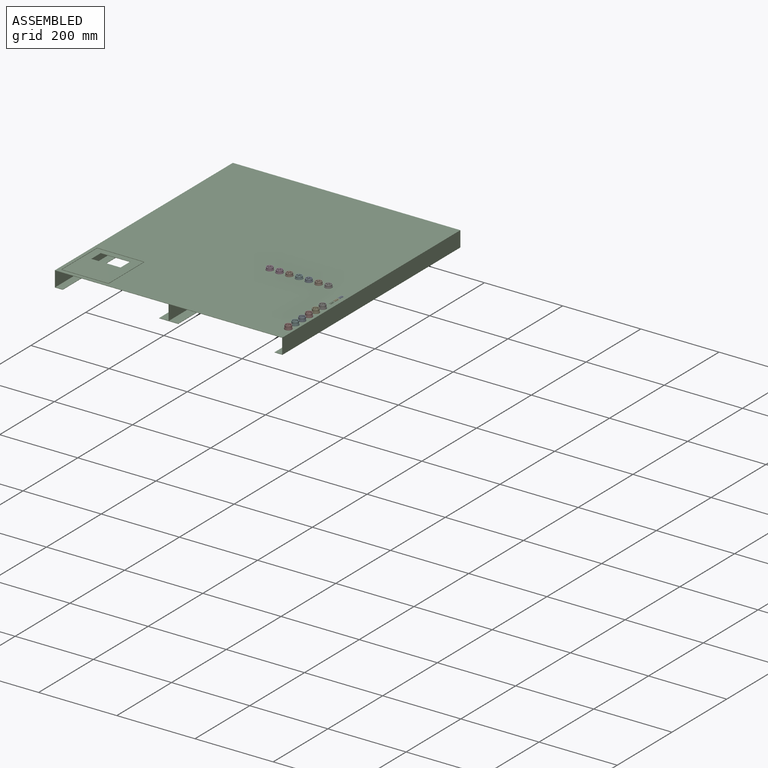
[diagram: assembled view]
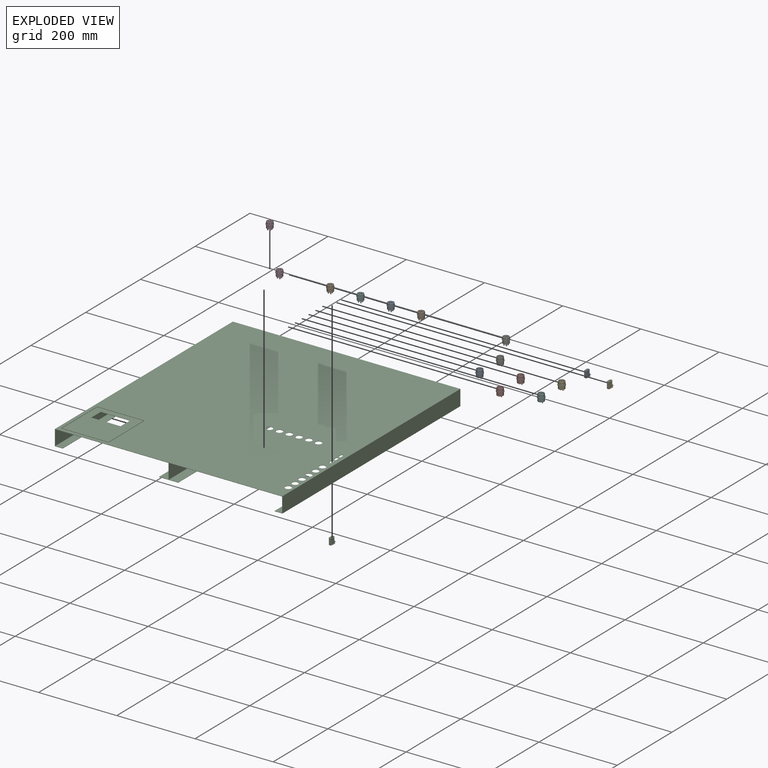
[diagram: exploded view]
GUIDED TOUR — MATED ASSEMBLY (Onshape document a941a942d02a937e6a74bb1d, AutoMate assembly a941a942d02a937e6a74bb1d_d239ec795984a30503c69aed_3e2d429f501e0a5373c27856_default)

This assembly has 17 components, labeled P0..P16 below (a component is one placed occurrence of a part; the same part can appear more than once), held together by 8 mates. A mate is a constraint between two components; its type names the relative motion it leaves free:
  CYLINDRICAL — leaves both rotation about and translation along the listed axis free,
  PARALLEL — keeps the two listed directions parallel,
  PLANAR — leaves sliding in the plane through the listed point (normal = the listed direction) and rotation about that normal free.
Axis/direction vectors are unit vectors and 'through' points are millimeter coordinates, both in the assembly's world frame.

MATES
  1. PLANAR "Planar 5": P10 <-> P2, direction (0.000, 0.000, -1.000) through (497.94, 131.12, -15.90) mm
  2. CYLINDRICAL "Cylindrical 2": P3 <-> P2, axis (0.000, 0.000, 1.000) through (296.49, 192.36, -8.00) mm
  3. CYLINDRICAL "Cylindrical 1": P15 <-> P2, axis (0.000, 0.000, 1.000) through (496.49, -25.42, -4.00) mm
  4. PARALLEL "Parallel 1": P2 <-> P10, direction (0.000, 0.000, 1.000) through (0.00, 0.00, 0.00) mm
  5. PLANAR "Planar 4": P10 <-> P2, direction (0.000, -1.000, 0.000) through (498.03, 124.58, -9.26) mm
  6. PLANAR "Planar 1": P15 <-> P2, direction (0.000, 0.000, -1.000) through (496.49, -25.42, 0.00) mm
  7. PLANAR "Planar 3": P10 <-> P2, direction (-1.000, 0.000, 0.000) through (494.99, 131.12, -8.72) mm
  8. PLANAR "Planar 2": P2 <-> P3, direction (0.000, 0.000, 1.000) through (0.00, 0.00, 0.00) mm

ASSEMBLY ORDER
  1. P11 — the base component [order verified]
  2. P1 [order verified]
  3. P5 [order verified]
  4. P8 [order verified]
  5. P9 [order verified]
  6. P3 [order verified]
  7. P2 [order verified]
  8. P14 [order verified]
  9. P7 [order verified]
  10. P4 [order verified]
  11. P0 [order verified]
  12. P15 [order verified]
  13. P13 [order verified]
  14. P6 [order verified]
  15. P16 [order verified]
  16. P12 [order verified]
  17. P10 [order verified]
(P2 verified with a relaxed clearance tolerance: the source model stores slight part interference there.)
Order-tag legend:
  [order verified] — this step's position reverses a verified removal order: the component was checked to insert without passing through the ones already placed.

Of the 17 components, 1 carries the full construction recipe — the FeatureScript program that regenerates the part's solid from scratch; the rest are supplied as boundary geometry only.
Because this assembly has more than 12 components, the tour below covers the 12 most significant ones individually (every recipe-attached component first, then the largest by part volume), in assembly order; the remaining 5 are summarized together in a grouped section at the end.
Each toured component is shown spotlighted twice — in the assembled view, then in the exploded view, where a leader line traces a displaced component back to its assembled socket (saturated green if recipe-attached, orange if geometry-only; every other component desaturated gray) — followed by its recipe or geometry summary and the mates that hold it.
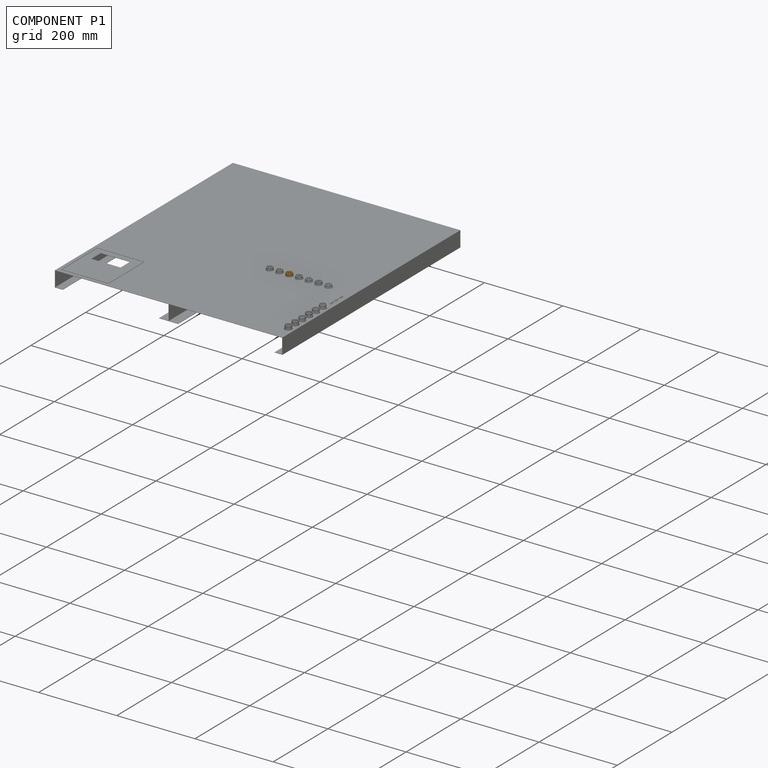
[diagram: component P1 — assembled]
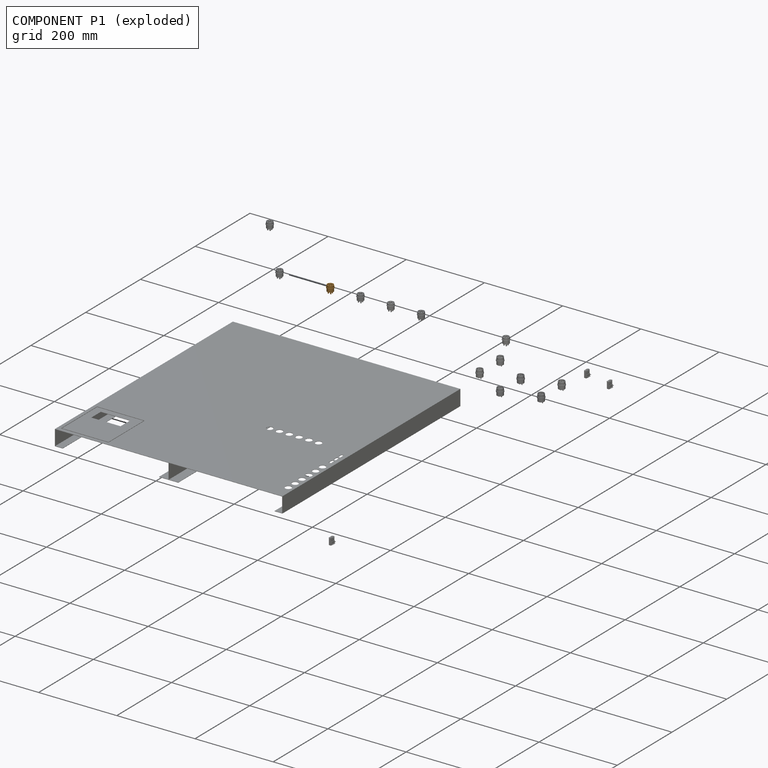
[diagram: component P1 — exploded]
COMPONENT P1 — geometry summary (no construction recipe available for this part):
  bounding box: 20.0 x 18.0 x 18.0 mm
  B-rep topology: 1 solid, 30 faces, 118 edges
  volume: 2028 mm^3 (31% of its bounding box)
  symmetry: mirror-symmetric across its x mid-plane
Held by: no mates (free).
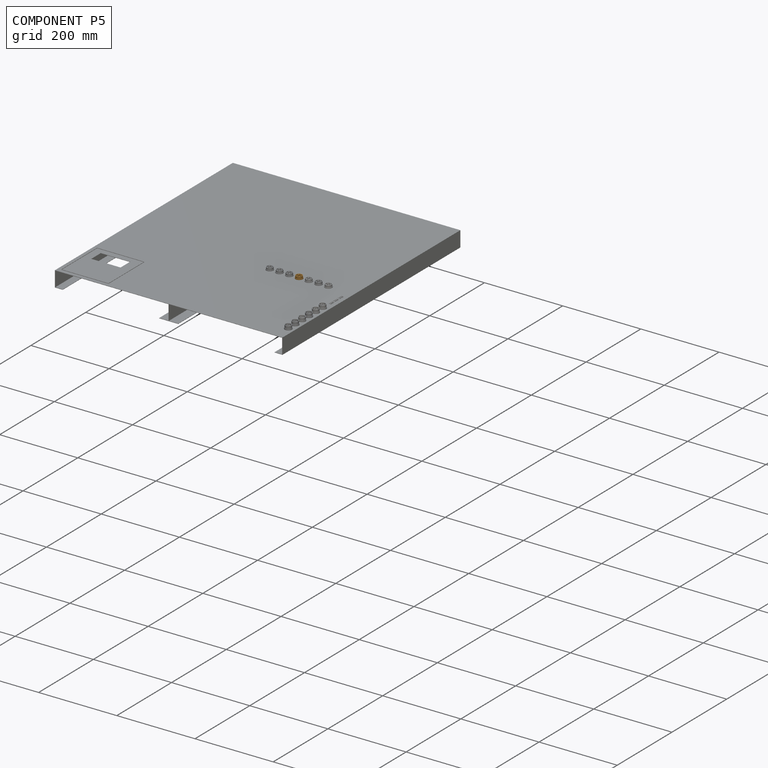
[diagram: component P5 — assembled]
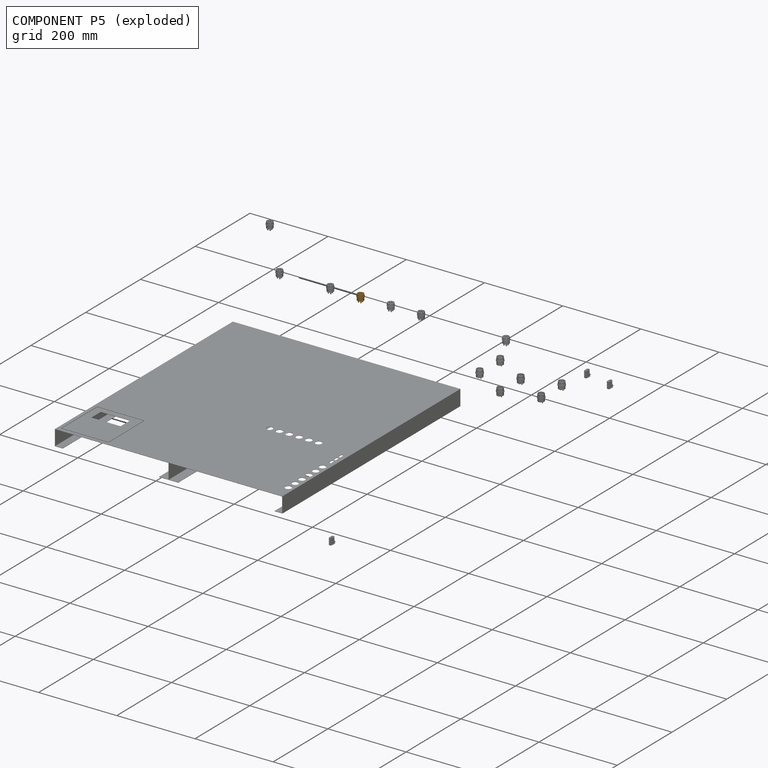
[diagram: component P5 — exploded]
COMPONENT P5 — geometry summary (no construction recipe available for this part):
  bounding box: 20.0 x 18.0 x 18.0 mm
  B-rep topology: 1 solid, 30 faces, 118 edges
  volume: 2028 mm^3 (31% of its bounding box)
  symmetry: mirror-symmetric across its x mid-plane
Held by: no mates (free).
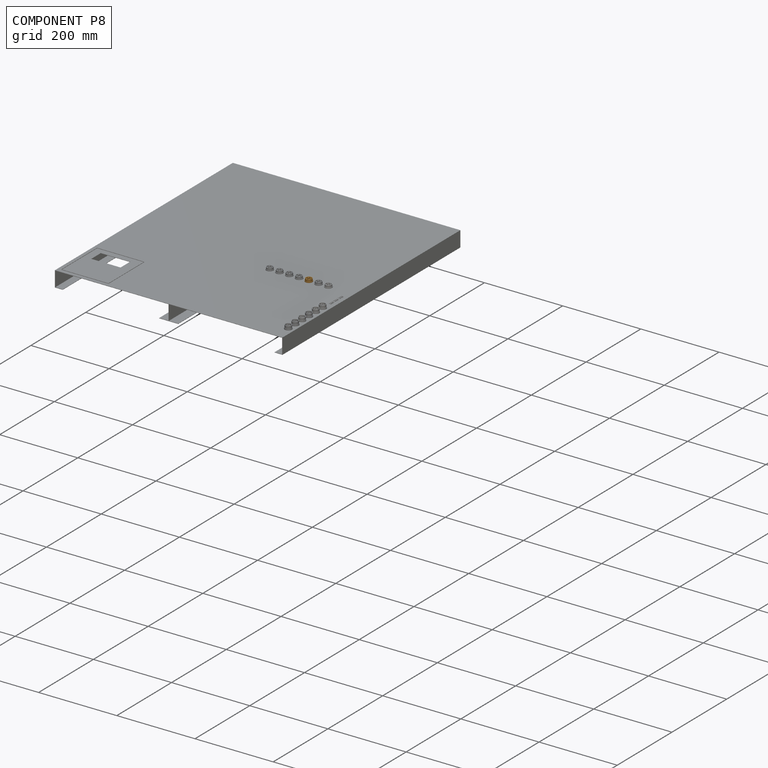
[diagram: component P8 — assembled]
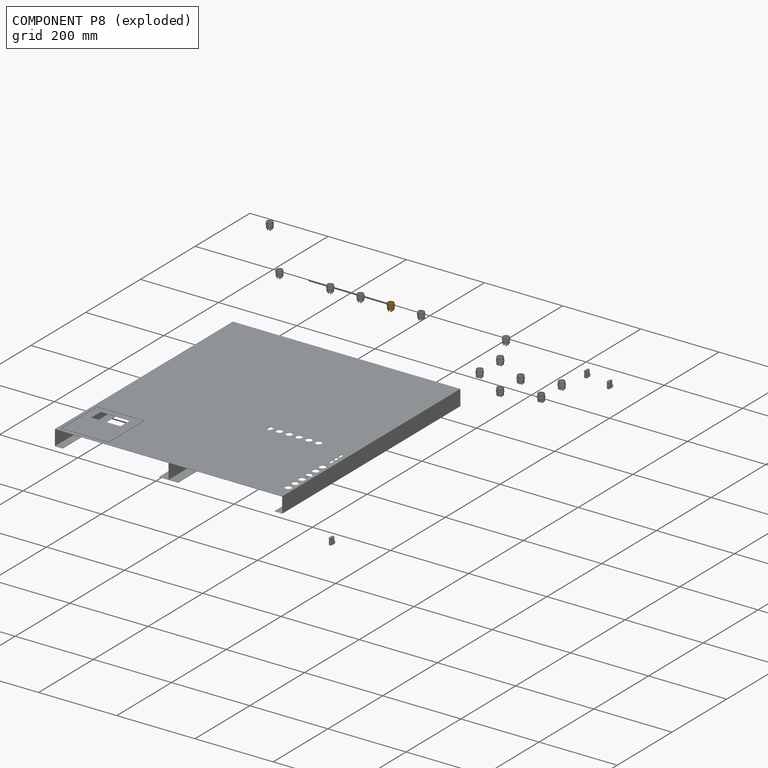
[diagram: component P8 — exploded]
COMPONENT P8 — geometry summary (no construction recipe available for this part):
  bounding box: 20.0 x 18.0 x 18.0 mm
  B-rep topology: 1 solid, 30 faces, 118 edges
  volume: 2028 mm^3 (31% of its bounding box)
  symmetry: mirror-symmetric across its x mid-plane
Held by: no mates (free).
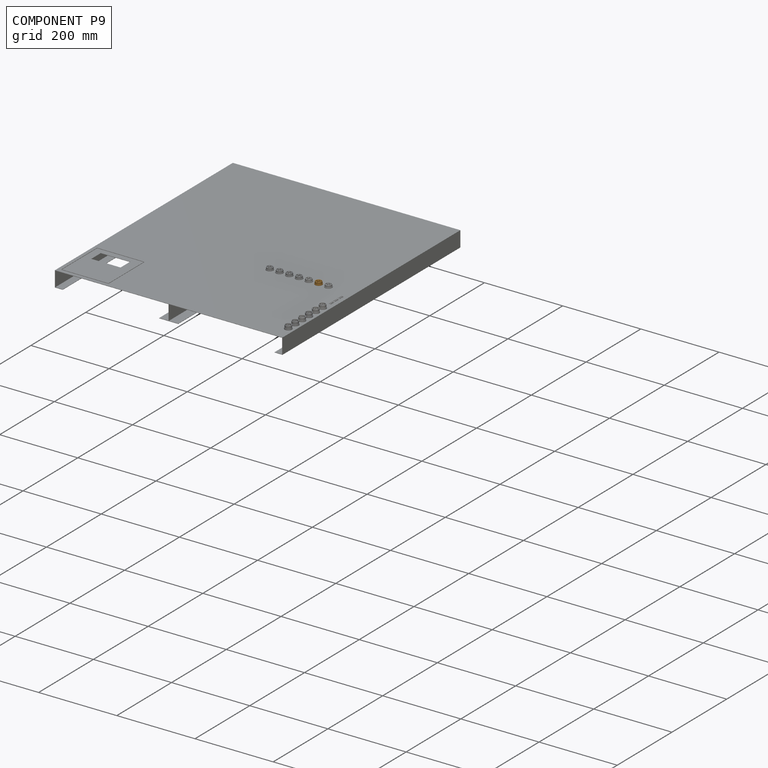
[diagram: component P9 — assembled]
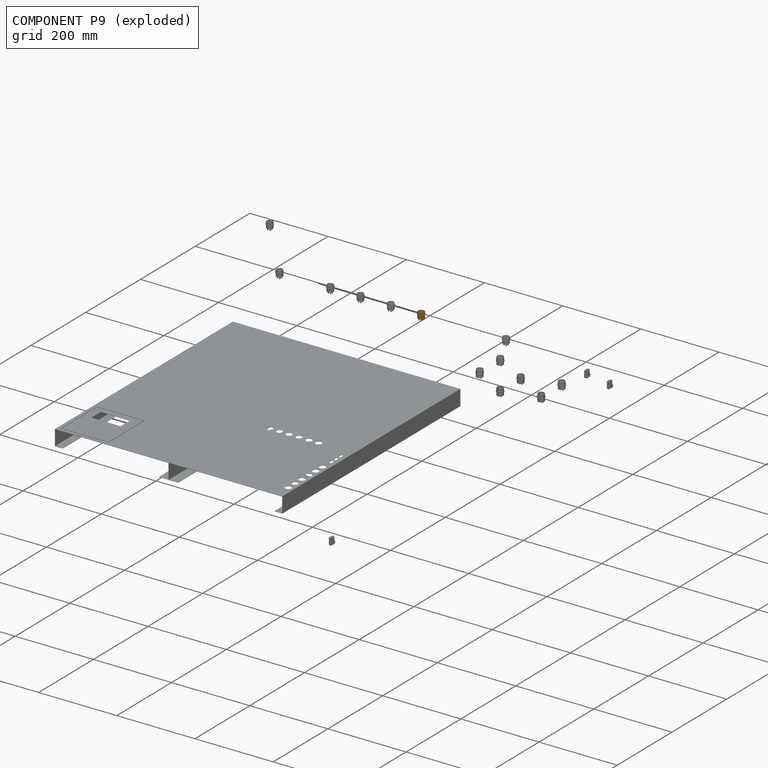
[diagram: component P9 — exploded]
COMPONENT P9 — geometry summary (no construction recipe available for this part):
  bounding box: 20.0 x 18.0 x 18.0 mm
  B-rep topology: 1 solid, 30 faces, 118 edges
  volume: 2028 mm^3 (31% of its bounding box)
  symmetry: mirror-symmetric across its x mid-plane
Held by: no mates (free).
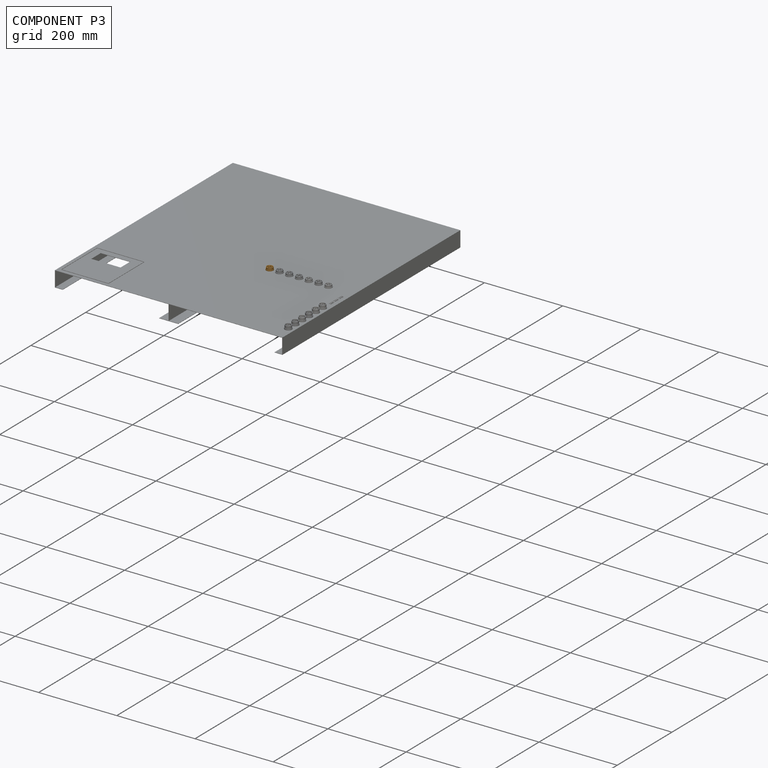
[diagram: component P3 — assembled]
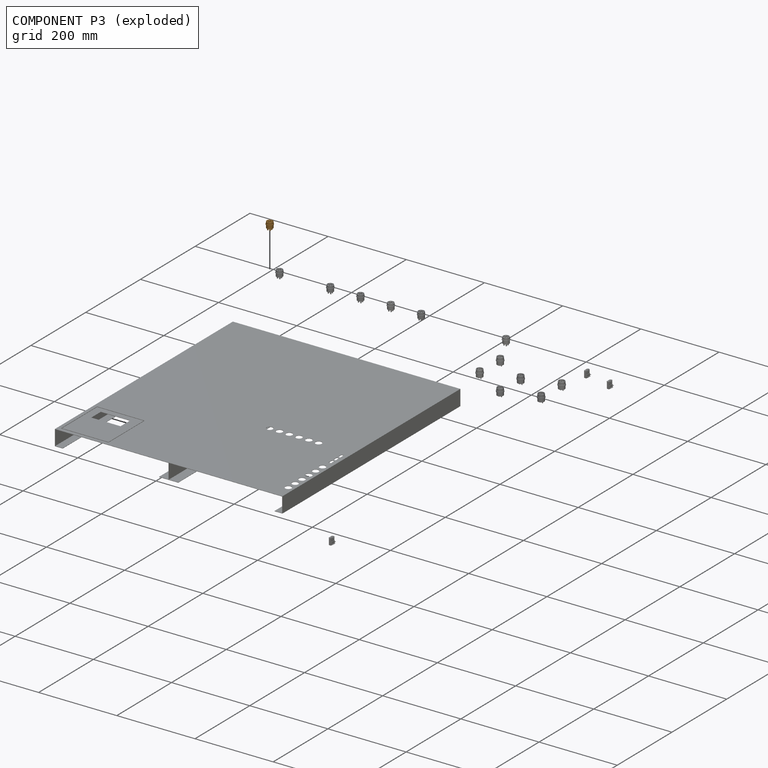
[diagram: component P3 — exploded]
COMPONENT P3 — geometry summary (no construction recipe available for this part):
  bounding box: 20.0 x 18.0 x 18.0 mm
  B-rep topology: 1 solid, 30 faces, 118 edges
  volume: 2028 mm^3 (31% of its bounding box)
  symmetry: mirror-symmetric across its x mid-plane
Held by: CYLINDRICAL mate "Cylindrical 2" to P2; PLANAR mate "Planar 2" to P2.
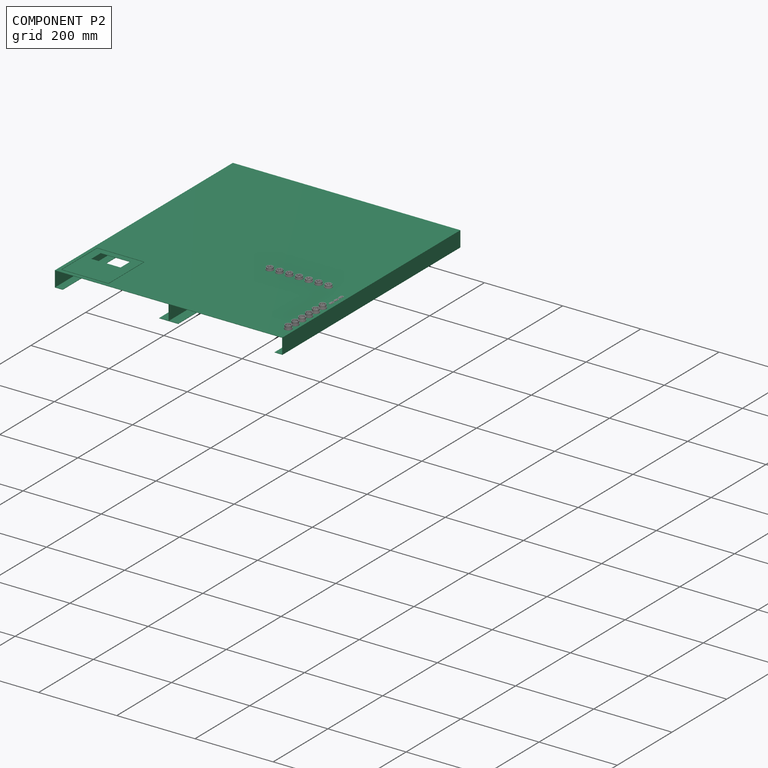
[diagram: component P2 — assembled]
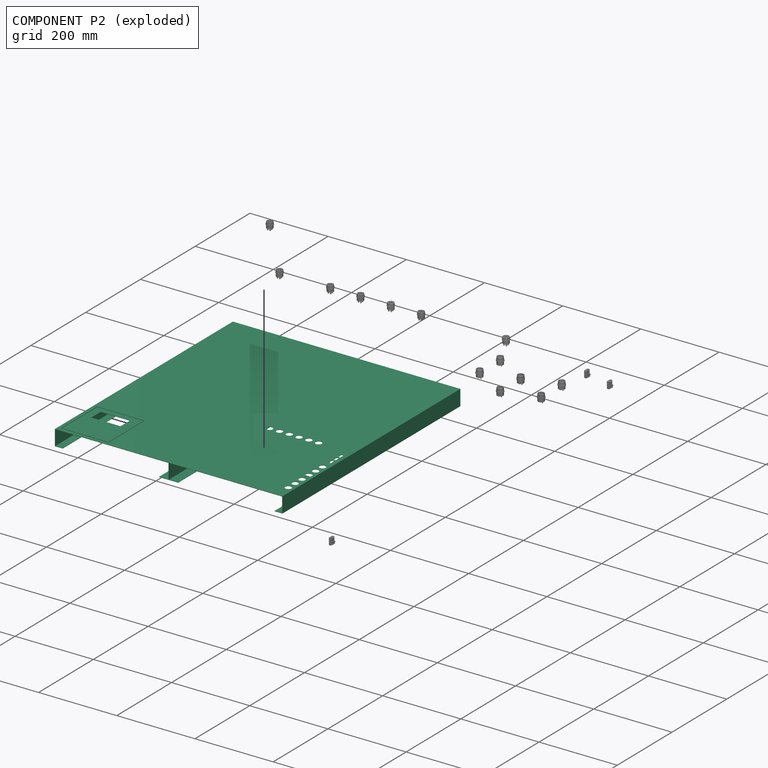
[diagram: component P2 — exploded]
COMPONENT P2 — recipe-attached (CADFS 00356751, mesh-verified: the recipe's output STEP matches this component's geometry to below the mesh-comparison resolution (tessellation chordal tolerance ~1.31 mm)).
Held by: PLANAR mate "Planar 5" to P10; CYLINDRICAL mate "Cylindrical 2" to P3; CYLINDRICAL mate "Cylindrical 1" to P15; PARALLEL mate "Parallel 1" to P10; PLANAR mate "Planar 4" to P10; PLANAR mate "Planar 1" to P15; PLANAR mate "Planar 3" to P10; PLANAR mate "Planar 2" to P3.
Construction recipe (FeatureScript — the CAD program that rebuilds this solid; sketch coordinates are in the units given by the * unit suffixes, e.g. mm):

FeatureScript 1511;
import(path : "onshape/std/geometry.fs", version : "1511.0");
import(path : "onshape/std/common.fs", version : "1511.0");
const mm = millimeter;
const VERTEX = EntityType.VERTEX;
const EDGE = EntityType.EDGE;
const FACE = EntityType.FACE;
const BODY = EntityType.BODY;
function v(x, y){return vector(x, y);}
function OD(order){return orderDisambiguation(order);}
function OSD(set){return originalSetDisambiguation(set);}
function TD(topology){return topologyDisambiguation(topology);}
function TDD(query){return trueDependencyDisambiguation(query);}
function sQuery(a, b, c) {return sketchEntityQuery(a, b, c);}

annotation { "Feature Type Name" : "Feature", "Feature Type Description" : "" }
export const myFeature = defineFeature(function(context is Context, id is Id, definition is map)
    precondition{}
    {
        {
            var Q0;
            Q0=qCreatedBy(makeId("Front.planeOp"),FACE);
            var sketch = newSketch(context, id + "F0", { "sketchPlane" : qUnion([Q0])});
            skLineSegment(sketch, "E0.bottom", {"start": v(-291, -20) * mm, "end": v(-271, -20) * mm});
            skLineSegment(sketch, "E0.top", {"start": v(-291, 20) * mm, "end": v(291, 20) * mm});
            skLineSegment(sketch, "E0.left", {"start": v(-291, -20) * mm, "end": v(-291, 20) * mm});
            skLineSegment(sketch, "E0.right", {"start": v(291, -20) * mm, "end": v(291, 20) * mm});
            skPoint(sketch, "E0.middle", {"position": v(0, 0) * mm});
            skPoint(sketch, "E1", {"position": v(-271, -20) * mm});
            skPoint(sketch, "E2", {"position": v(271, -20) * mm});
            skLineSegment(sketch, "E3.trimOffspring", {"start": v(271, -20) * mm, "end": v(291, -20) * mm});
            skLineSegment(sketch, "E4.0", {"start": v(271, -19.1) * mm, "end": v(290.1, -19.1) * mm});
            skLineSegment(sketch, "E4.1", {"start": v(-290.1, -19.1) * mm, "end": v(-271, -19.1) * mm});
            skLineSegment(sketch, "E4.2", {"start": v(-290.1, -19.1) * mm, "end": v(-290.1, 19.1) * mm});
            skLineSegment(sketch, "E4.3", {"start": v(-290.1, 19.1) * mm, "end": v(290.1, 19.1) * mm});
            skLineSegment(sketch, "E4.4", {"start": v(290.1, -19.1) * mm, "end": v(290.1, 19.1) * mm});
            skLineSegment(sketch, "E5", {"start": v(-271, -19.1) * mm, "end": v(-271, -20) * mm});
            skLineSegment(sketch, "E6", {"start": v(271, -19.1) * mm, "end": v(271, -20) * mm});
            skSolve(sketch);
        }
        {
            var Q0;
            Q0=makeQuery(id+"F0.imprint","IMPRINT",FACE,{"disambiguationData":[TD([[makeQuery(id+"F0.imprint","IMPRINT",EDGE,{"derivedFrom":sQuery(id+"F0.wireOp",EDGE,"E0.bottom")}),1.0]])]});
            extrude(context, id + "F1", {"entities" : qUnion([Q0]), "endBound" : BoundingType.SYMMETRIC, "depth" : 650 * mm});
        }
        {
            var Q0;
            Q0=makeQuery(id+"F1.opExtrude","SWEPT_FACE",FACE,{"disambiguationData":[OSD([sQuery(id+"F0.wireOp",EDGE,"E0.top")])]});
            var sketch = newSketch(context, id + "F2", { "sketchPlane" : qUnion([Q0])});
            skLineSegment(sketch, "E7.bottom", {"start": v(-161, -185) * mm, "end": v(-281, -185) * mm, "construction": true});
            skLineSegment(sketch, "E7.top", {"start": v(-161, -315) * mm, "end": v(-281, -315) * mm, "construction": true});
            skLineSegment(sketch, "E7.left", {"start": v(-161, -185) * mm, "end": v(-161, -315) * mm, "construction": true});
            skLineSegment(sketch, "E7.right", {"start": v(-281, -185) * mm, "end": v(-281, -315) * mm, "construction": true});
            skPoint(sketch, "E7.middle", {"position": v(-221, -250) * mm});
            skLineSegment(sketch, "E8.bottom", {"start": v(251, -85) * mm, "end": v(-159, -85) * mm, "construction": true});
            skLineSegment(sketch, "E8.top", {"start": v(251, -315) * mm, "end": v(-159, -315) * mm, "construction": true});
            skLineSegment(sketch, "E8.left", {"start": v(251, -85) * mm, "end": v(251, -315) * mm, "construction": true});
            skLineSegment(sketch, "E8.right", {"start": v(-159, -85) * mm, "end": v(-159, -315) * mm, "construction": true});
            skPoint(sketch, "E8.middle", {"position": v(46, -200) * mm});
            skCircle(sketch, "E9", {"center": v(276, -207) * mm, "radius": 8 * mm});
            skCircle(sketch, "E10", {"center": v(276, -282) * mm, "radius": 8 * mm});
            skCircle(sketch, "E11", {"center": v(276, -232) * mm, "radius": 8 * mm});
            skCircle(sketch, "E12", {"center": v(276, -257) * mm, "radius": 8 * mm});
            skCircle(sketch, "E13", {"center": v(276, -182) * mm, "radius": 8 * mm});
            skLineSegment(sketch, "E14.bottom", {"start": v(-261, -235) * mm, "end": v(-186, -235) * mm});
            skLineSegment(sketch, "E14.top", {"start": v(-261, -200) * mm, "end": v(-186, -200) * mm});
            skLineSegment(sketch, "E14.left", {"start": v(-261, -235) * mm, "end": v(-261, -200) * mm});
            skLineSegment(sketch, "E14.right", {"start": v(-186, -235) * mm, "end": v(-186, -200) * mm});
            skLineSegment(sketch, "E15.bottom", {"start": v(280, -119) * mm, "end": v(274, -119) * mm});
            skLineSegment(sketch, "E15.top", {"start": v(280, -132) * mm, "end": v(274, -132) * mm});
            skLineSegment(sketch, "E15.left", {"start": v(280, -119) * mm, "end": v(280, -132) * mm});
            skLineSegment(sketch, "E15.right", {"start": v(274, -119) * mm, "end": v(274, -132) * mm});
            skCircle(sketch, "E16", {"center": v(201, -64.21) * mm, "radius": 8 * mm});
            skCircle(sketch, "E17", {"center": v(176, -64.21) * mm, "radius": 8 * mm});
            skCircle(sketch, "E18", {"center": v(151, -64.21) * mm, "radius": 8 * mm});
            skCircle(sketch, "E19", {"center": v(126, -64.21) * mm, "radius": 8 * mm});
            skCircle(sketch, "E20", {"center": v(101, -64.21) * mm, "radius": 8 * mm});
            skCircle(sketch, "E21", {"center": v(76, -64.21) * mm, "radius": 8 * mm});
            skCircle(sketch, "E22", {"center": v(276, -157) * mm, "radius": 8 * mm});
            skLineSegment(sketch, "E23.bottom", {"start": v(280, -102) * mm, "end": v(274, -102) * mm});
            skLineSegment(sketch, "E23.top", {"start": v(280, -115) * mm, "end": v(274, -115) * mm});
            skLineSegment(sketch, "E23.left", {"start": v(280, -102) * mm, "end": v(280, -115) * mm});
            skLineSegment(sketch, "E23.right", {"start": v(274, -102) * mm, "end": v(274, -115) * mm});
            skLineSegment(sketch, "E24.bottom", {"start": v(280, -85) * mm, "end": v(274, -85) * mm});
            skLineSegment(sketch, "E24.top", {"start": v(280, -98) * mm, "end": v(274, -98) * mm});
            skLineSegment(sketch, "E24.left", {"start": v(280, -85) * mm, "end": v(280, -98) * mm});
            skLineSegment(sketch, "E24.right", {"start": v(274, -85) * mm, "end": v(274, -98) * mm});
            skSolve(sketch);
        }
        {
            var Q0;
            Q0=sQuery(id+"F2.wireOp",VERTEX,"E10.center");
            var Q1;
            Q1=sQuery(id+"F2.wireOp",VERTEX,"E12.center");
            var Q2;
            Q2=sQuery(id+"F2.wireOp",VERTEX,"E11.center");
            var Q3;
            Q3=sQuery(id+"F2.wireOp",VERTEX,"E9.center");
            var Q4;
            Q4=sQuery(id+"F2.wireOp",VERTEX,"E13.center");
            var Q5;
            Q5=sQuery(id+"F2.wireOp",VERTEX,"ZPgRsYmq-daMn-rLE5-gk4w-gas4kPWKtT1p.center");
            var Q6;
            Q6=sQuery(id+"F2.wireOp",VERTEX,"E16.center");
            var Q7;
            Q7=sQuery(id+"F2.wireOp",VERTEX,"E17.center");
            var Q8;
            Q8=sQuery(id+"F2.wireOp",VERTEX,"E18.center");
            var Q9;
            Q9=sQuery(id+"F2.wireOp",VERTEX,"E19.center");
            var Q10;
            Q10=sQuery(id+"F2.wireOp",VERTEX,"E20.center");
            var Q11;
            Q11=sQuery(id+"F2.wireOp",VERTEX,"E21.center");
            var Q12;
            Q12=sQuery(id+"F2.wireOp",VERTEX,"E22.center");
            var Q13;
            Q13=makeQuery(id+"F1.opExtrude","SWEPT_BODY",BODY,{"disambiguationData":[OSD([sQuery(id+"F0.wireOp",EDGE,"E0.bottom"),sQuery(id+"F0.wireOp",EDGE,"E0.top"),sQuery(id+"F0.wireOp",EDGE,"E0.left"),sQuery(id+"F0.wireOp",EDGE,"E0.right"),sQuery(id+"F0.wireOp",EDGE,"E3.trimOffspring"),sQuery(id+"F0.wireOp",EDGE,"E4.0"),sQuery(id+"F0.wireOp",EDGE,"E4.1"),sQuery(id+"F0.wireOp",EDGE,"E4.2"),sQuery(id+"F0.wireOp",EDGE,"E4.3"),sQuery(id+"F0.wireOp",EDGE,"E4.4"),sQuery(id+"F0.wireOp",EDGE,"E5"),sQuery(id+"F0.wireOp",EDGE,"E6")])]});
            hole(context, id + "F3", {"style" : HoleStyle.SIMPLE, "endStyle" : HoleEndStyle.BLIND, "holeDiameter" : 16 * mm, "holeDepth" : 5 * mm, "isTappedThrough" : true, "tappedDepth" : 12 * mm, "tapClearance" : 3, "startFromSketch" : true, "locations" : qUnion([Q0, Q1, Q2, Q3, Q4, Q5, Q6, Q7, Q8, Q9, Q10, Q11, Q12]), "scope" : qUnion([Q13])});
        }
        {
            var Q0;
            Q0=makeQuery(id+"F2.imprint","IMPRINT",FACE,{"disambiguationData":[TD([[makeQuery(id+"F2.imprint","IMPRINT",EDGE,{"derivedFrom":sQuery(id+"F2.wireOp",EDGE,"E15.bottom")}),1.0]])]});
            var Q1;
            Q1=makeQuery(id+"F2.imprint","IMPRINT",FACE,{"disambiguationData":[TD([[makeQuery(id+"F2.imprint","IMPRINT",EDGE,{"derivedFrom":sQuery(id+"F2.wireOp",EDGE,"E14.bottom")}),1.0]])]});
            var Q2;
            Q2=makeQuery(id+"F2.imprint","IMPRINT",FACE,{"disambiguationData":[TD([[makeQuery(id+"F2.imprint","IMPRINT",EDGE,{"derivedFrom":sQuery(id+"F2.wireOp",EDGE,"E23.bottom")}),1.0]])]});
            var Q3;
            Q3=makeQuery(id+"F2.imprint","IMPRINT",FACE,{"disambiguationData":[TD([[makeQuery(id+"F2.imprint","IMPRINT",EDGE,{"derivedFrom":sQuery(id+"F2.wireOp",EDGE,"E24.bottom")}),1.0]])]});
            extrude(context, id + "F4", {"entities" : qUnion([Q0, Q1, Q2, Q3]), "operationType" : NewBodyOperationType.REMOVE, "oppositeDirection" : true, "depth" : 25 * mm});
        }
        {
            var Q0;
            Q0=makeQuery(id+"F2.imprint","IMPRINT",FACE,{"disambiguationData":[TD([[makeQuery(id+"F2.imprint","IMPRINT",EDGE,{"derivedFrom":sQuery(id+"F2.wireOp",EDGE,"E9")}),-1.0]])]});
            var sketch = newSketch(context, id + "F5", { "sketchPlane" : qUnion([Q0])});
            skLineSegment(sketch, "E25.bottom", {"start": v(-280, -185) * mm, "end": v(-162, -185) * mm});
            skLineSegment(sketch, "E25.top", {"start": v(-280, -315) * mm, "end": v(-162, -315) * mm});
            skLineSegment(sketch, "E25.left", {"start": v(-281, -186) * mm, "end": v(-281, -314) * mm});
            skLineSegment(sketch, "E25.right", {"start": v(-161, -186) * mm, "end": v(-161, -314) * mm});
            skLineSegment(sketch, "E26.0", {"start": v(-280.5, -184.5) * mm, "end": v(-161.5, -184.5) * mm});
            skLineSegment(sketch, "E26.1", {"start": v(-281.5, -185.5) * mm, "end": v(-281.5, -314.5) * mm});
            skLineSegment(sketch, "E26.2", {"start": v(-280.5, -315.5) * mm, "end": v(-161.5, -315.5) * mm});
            skLineSegment(sketch, "E26.3", {"start": v(-160.5, -185.5) * mm, "end": v(-160.5, -314.5) * mm});
            skPoint(sketch, "E27.visualSharp", {"position": v(-161, -185) * mm});
            skArc(sketch, "E27.filletArc", {"start": v(-161, -186) * mm, "mid": v(-161.3, -185.3) * mm, "end": v(-162, -185) * mm});
            skPoint(sketch, "E28.visualSharp", {"position": v(-160.5, -184.5) * mm});
            skArc(sketch, "E28.filletArc", {"start": v(-160.5, -185.5) * mm, "mid": v(-160.8, -184.8) * mm, "end": v(-161.5, -184.5) * mm});
            skPoint(sketch, "E29.visualSharp", {"position": v(-281.5, -184.5) * mm});
            skArc(sketch, "E29.filletArc", {"start": v(-280.5, -184.5) * mm, "mid": v(-281.2, -184.8) * mm, "end": v(-281.5, -185.5) * mm});
            skPoint(sketch, "E30.visualSharp", {"position": v(-281, -185) * mm});
            skArc(sketch, "E30.filletArc", {"start": v(-280, -185) * mm, "mid": v(-280.7, -185.3) * mm, "end": v(-281, -186) * mm});
            skPoint(sketch, "E31.visualSharp", {"position": v(-281, -315) * mm});
            skArc(sketch, "E31.filletArc", {"start": v(-281, -314) * mm, "mid": v(-280.7, -314.7) * mm, "end": v(-280, -315) * mm});
            skPoint(sketch, "E32.visualSharp", {"position": v(-281.5, -315.5) * mm});
            skArc(sketch, "E32.filletArc", {"start": v(-281.5, -314.5) * mm, "mid": v(-281.2, -315.2) * mm, "end": v(-280.5, -315.5) * mm});
            skPoint(sketch, "E33.visualSharp", {"position": v(-160.5, -315.5) * mm});
            skArc(sketch, "E33.filletArc", {"start": v(-161.5, -315.5) * mm, "mid": v(-160.8, -315.2) * mm, "end": v(-160.5, -314.5) * mm});
            skPoint(sketch, "E34.visualSharp", {"position": v(-161, -315) * mm});
            skArc(sketch, "E34.filletArc", {"start": v(-162, -315) * mm, "mid": v(-161.3, -314.7) * mm, "end": v(-161, -314) * mm});
            skSolve(sketch);
        }
        {
            var Q0;
            Q0 = qSketchRegion(id + "F5", true);
            extrude(context, id + "F6", {"entities" : qUnion([Q0]), "operationType" : NewBodyOperationType.ADD, "depth" : 1 * mm});
        }
        {
            var Q0;
            Q0=qCreatedBy(makeId("Front.planeOp"),FACE);
            var sketch = newSketch(context, id + "F7", { "sketchPlane" : qUnion([Q0])});
            skLineSegment(sketch, "E35.bottom", {"start": v(24.36, -20) * mm, "end": v(-24.36, -20) * mm});
            skLineSegment(sketch, "E35.top", {"start": v(0.47, 20) * mm, "end": v(-0.43, 20) * mm});
            skLineSegment(sketch, "E35.left", {"start": v(24.36, -20) * mm, "end": v(24.36, -19.1) * mm});
            skLineSegment(sketch, "E35.right", {"start": v(-24.36, -20) * mm, "end": v(-24.36, -19.1) * mm});
            skPoint(sketch, "E35.middle", {"position": v(0, 0) * mm});
            skLineSegment(sketch, "E36", {"start": v(-0.43, 20) * mm, "end": v(-0.43, -19.1) * mm});
            skLineSegment(sketch, "E37", {"start": v(-0.43, -19.1) * mm, "end": v(-24.36, -19.1) * mm});
            skLineSegment(sketch, "E38", {"start": v(0.47, 20) * mm, "end": v(0.47, -19.1) * mm});
            skLineSegment(sketch, "E39", {"start": v(0.47, -19.1) * mm, "end": v(24.36, -19.1) * mm});
            skPoint(sketch, "E40.orphan", {"position": v(-24.36, 20) * mm});
            skPoint(sketch, "E41.orphan", {"position": v(24.36, 20) * mm});
            skSolve(sketch);
        }
        {
            var Q0;
            Q0 = qSketchRegion(id + "F7", true);
            extrude(context, id + "F8", {"entities" : qUnion([Q0]), "operationType" : NewBodyOperationType.ADD, "endBound" : BoundingType.SYMMETRIC, "depth" : 650 * mm});
        }
    });
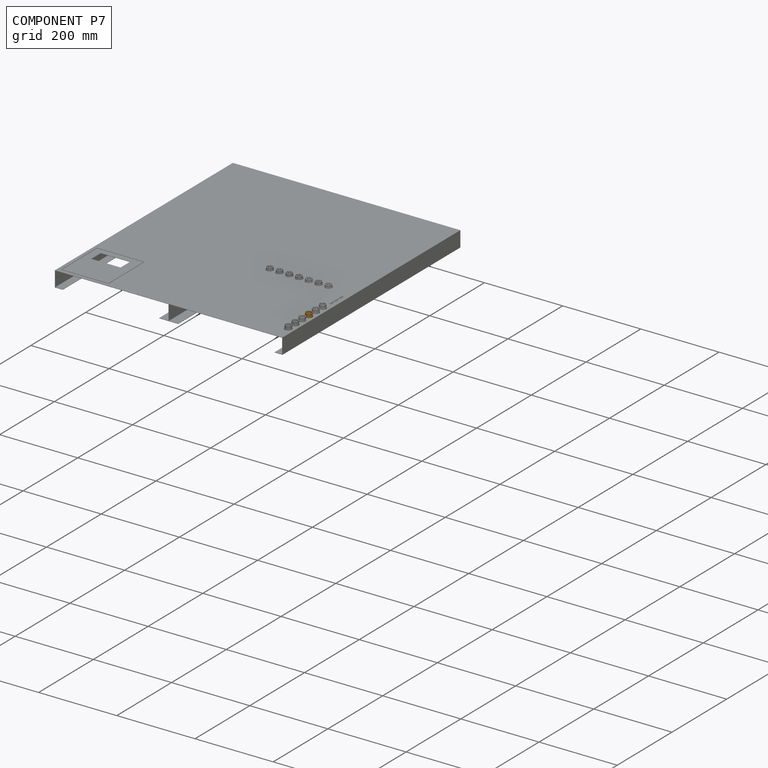
[diagram: component P7 — assembled]
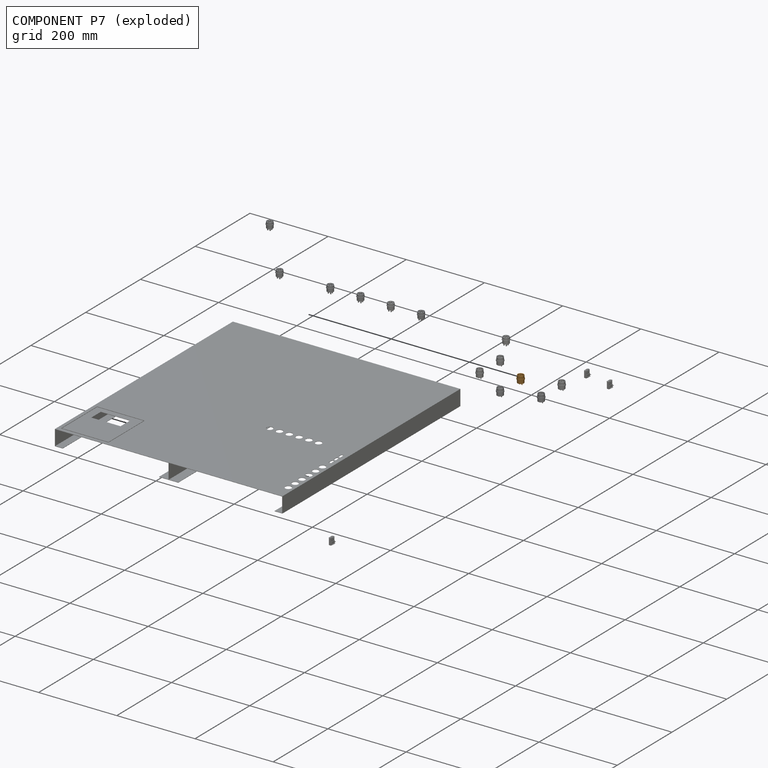
[diagram: component P7 — exploded]
COMPONENT P7 — geometry summary (no construction recipe available for this part):
  bounding box: 23.0 x 18.0 x 18.0 mm
  B-rep topology: 1 solid, 31 faces, 118 edges
  volume: 3036 mm^3 (41% of its bounding box)
  symmetry: mirror-symmetric across its x mid-plane
Held by: no mates (free).
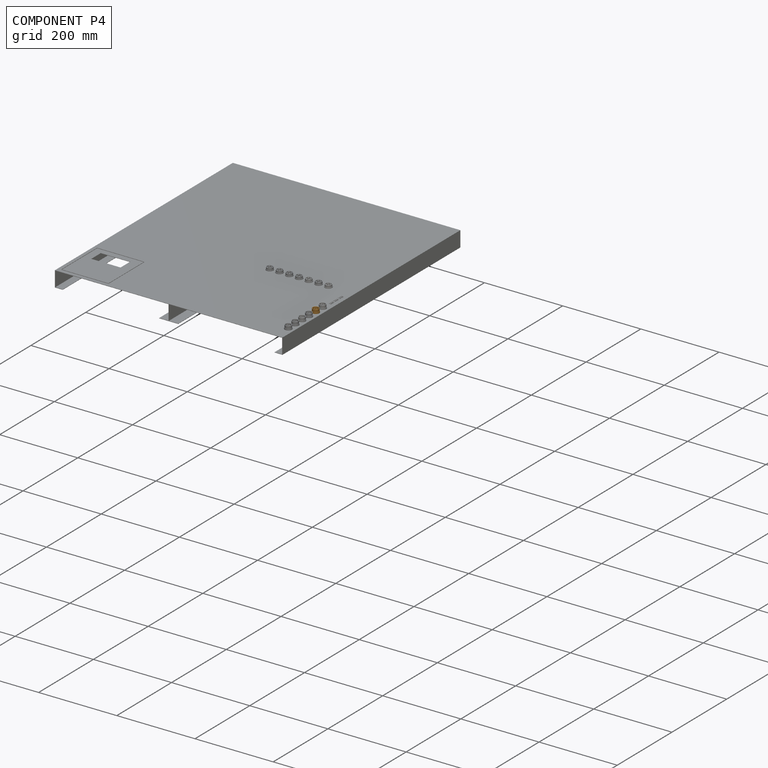
[diagram: component P4 — assembled]
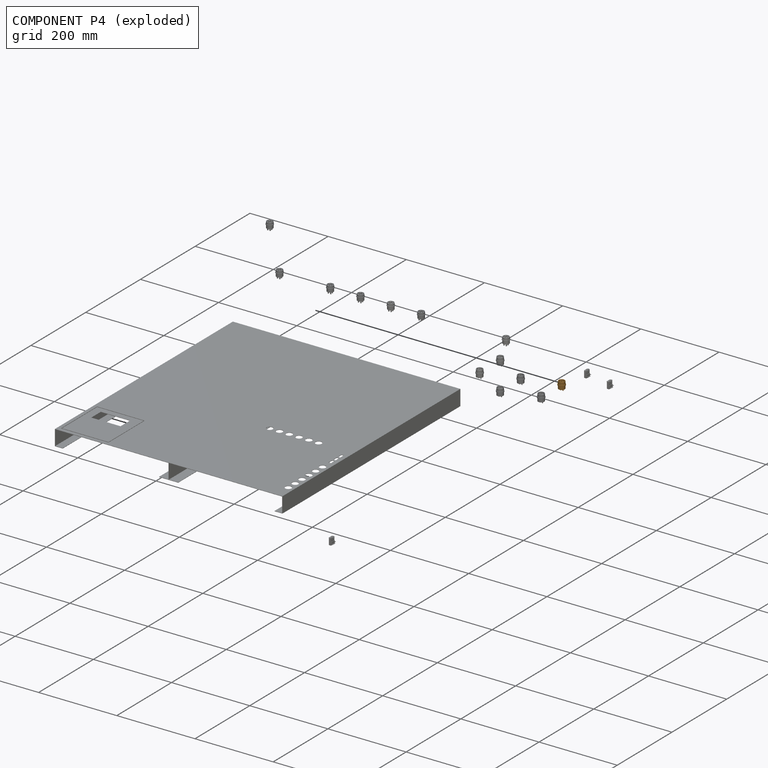
[diagram: component P4 — exploded]
COMPONENT P4 — geometry summary (no construction recipe available for this part):
  bounding box: 23.0 x 18.0 x 18.0 mm
  B-rep topology: 1 solid, 31 faces, 118 edges
  volume: 3036 mm^3 (41% of its bounding box)
  symmetry: mirror-symmetric across its x mid-plane
Held by: no mates (free).
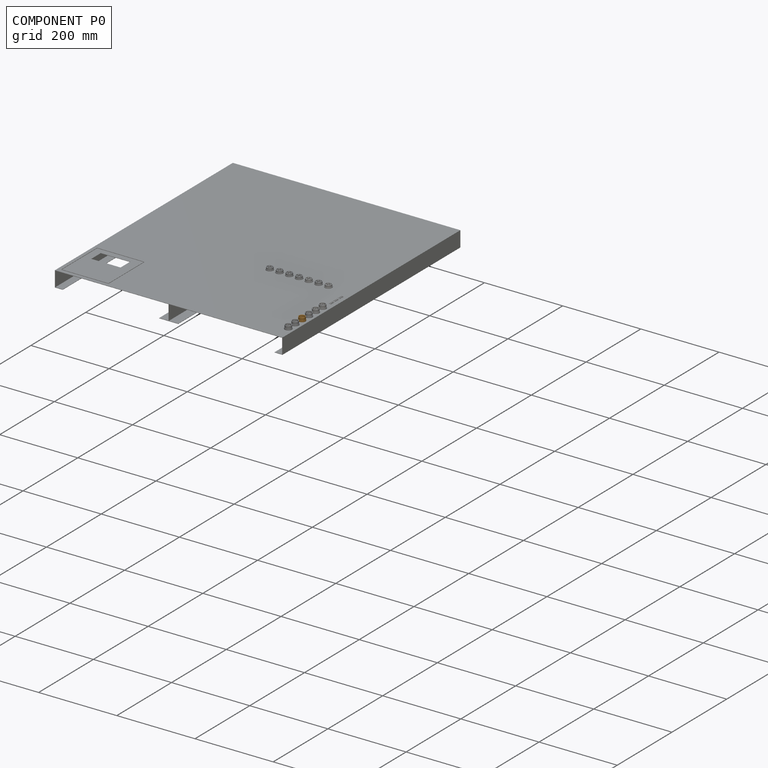
[diagram: component P0 — assembled]
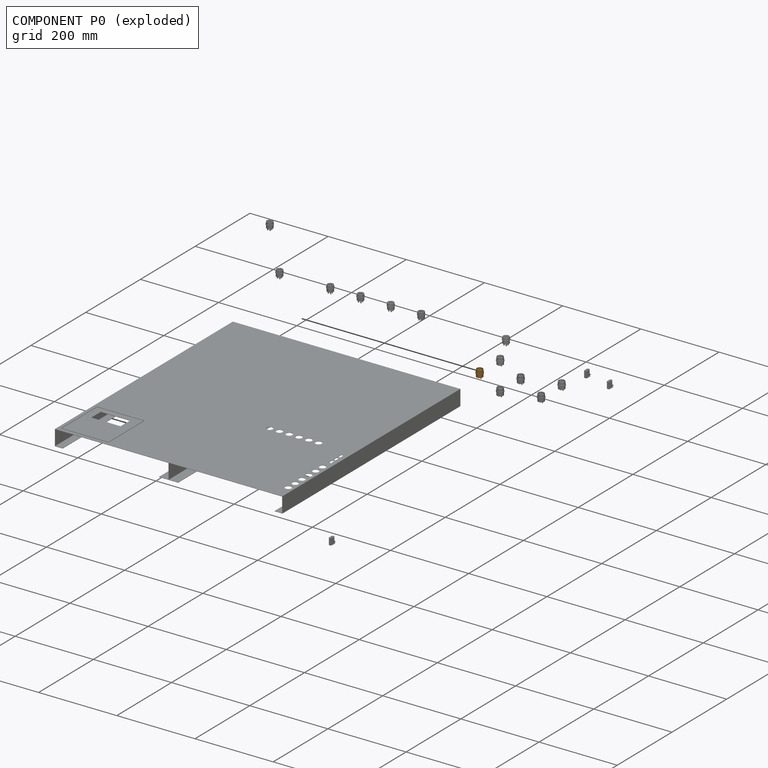
[diagram: component P0 — exploded]
COMPONENT P0 — geometry summary (no construction recipe available for this part):
  bounding box: 23.0 x 18.0 x 18.0 mm
  B-rep topology: 1 solid, 31 faces, 118 edges
  volume: 3036 mm^3 (41% of its bounding box)
  symmetry: mirror-symmetric across its x mid-plane
Held by: no mates (free).
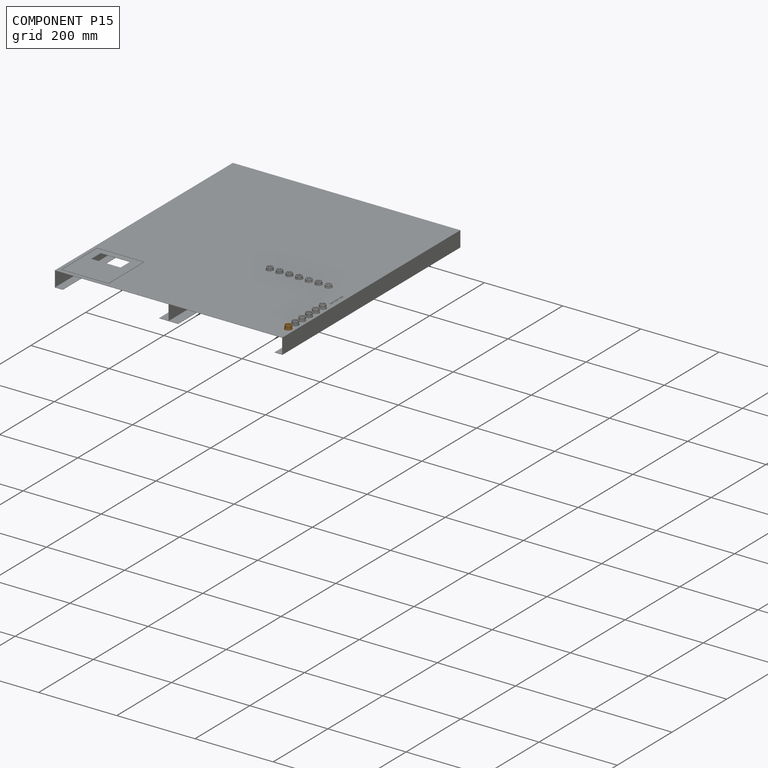
[diagram: component P15 — assembled]
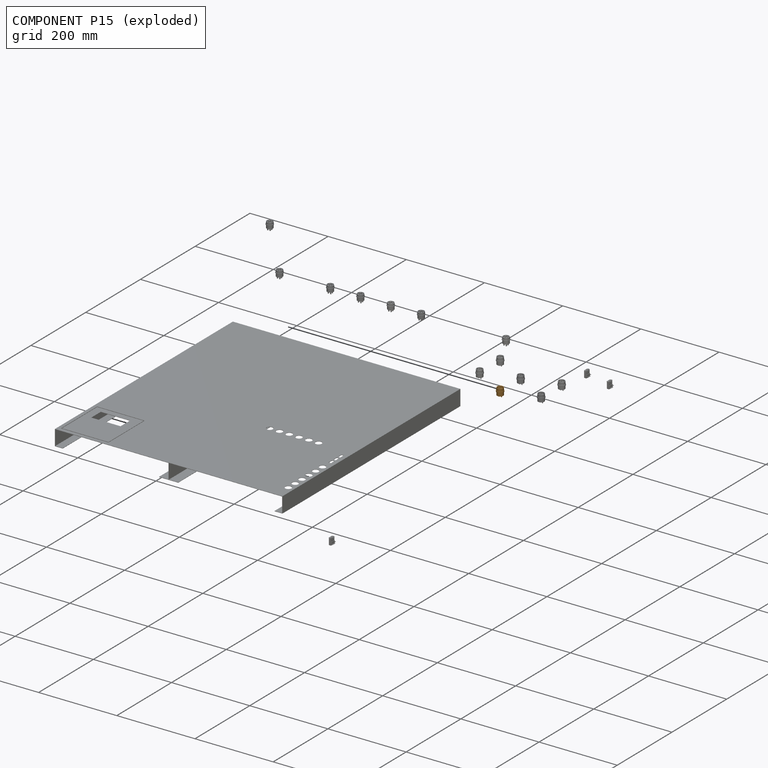
[diagram: component P15 — exploded]
COMPONENT P15 — geometry summary (no construction recipe available for this part):
  bounding box: 23.0 x 18.0 x 18.0 mm
  B-rep topology: 1 solid, 31 faces, 118 edges
  volume: 3036 mm^3 (41% of its bounding box)
  symmetry: mirror-symmetric across its x mid-plane
Held by: CYLINDRICAL mate "Cylindrical 1" to P2; PLANAR mate "Planar 1" to P2.
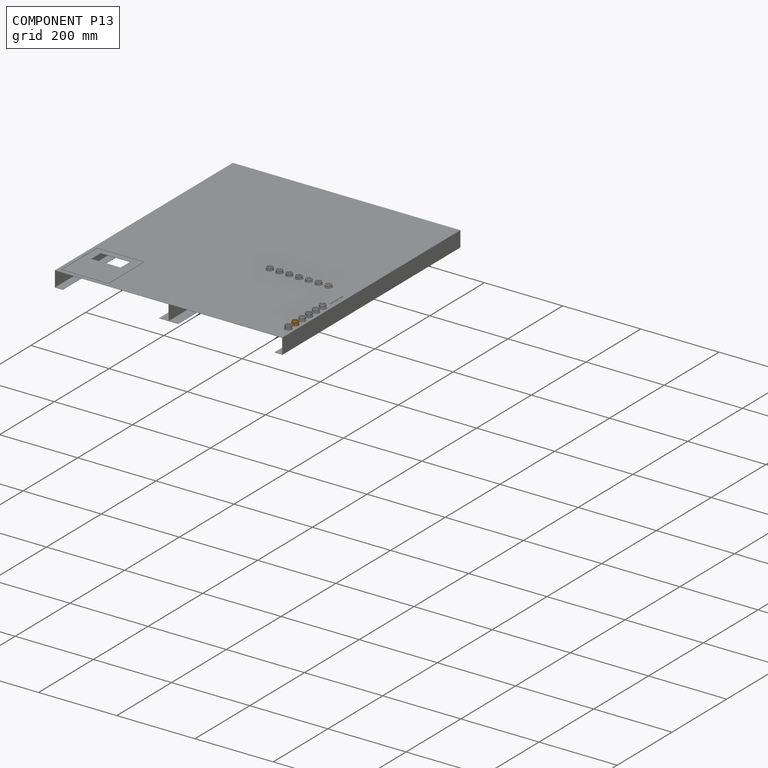
[diagram: component P13 — assembled]
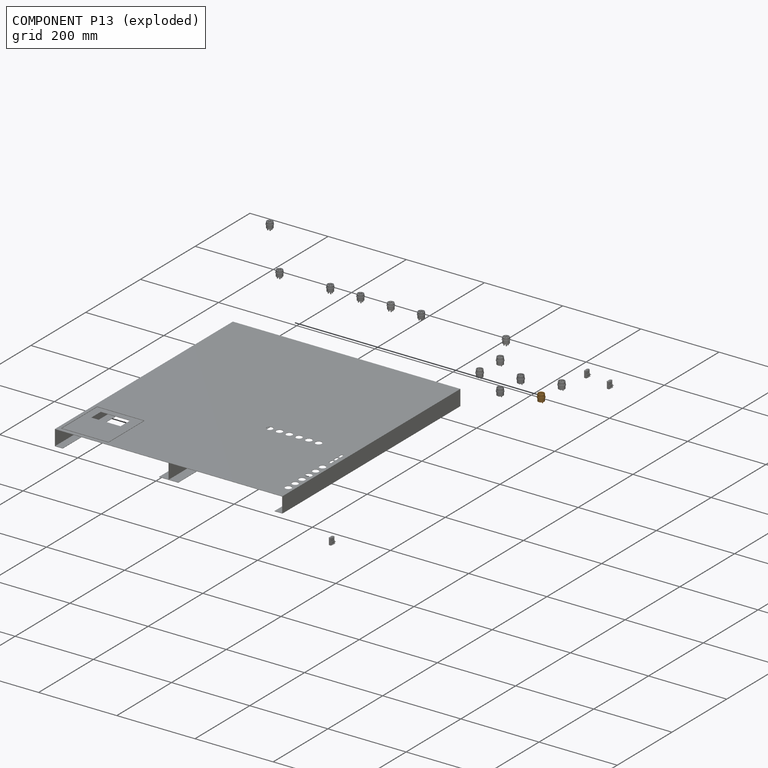
[diagram: component P13 — exploded]
COMPONENT P13 — geometry summary (no construction recipe available for this part):
  bounding box: 23.0 x 18.0 x 18.0 mm
  B-rep topology: 1 solid, 31 faces, 118 edges
  volume: 3036 mm^3 (41% of its bounding box)
  symmetry: mirror-symmetric across its x mid-plane
Held by: no mates (free).
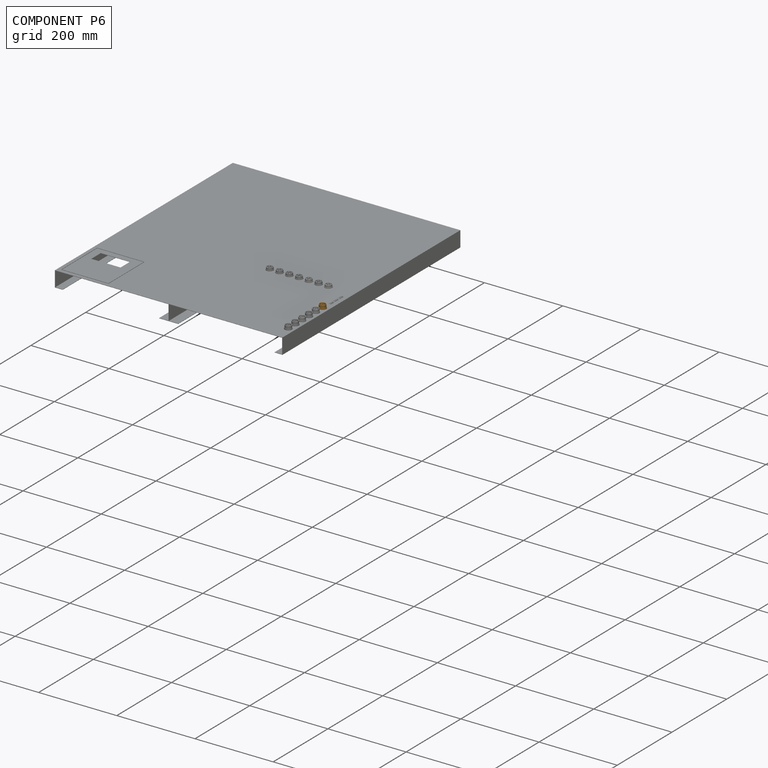
[diagram: component P6 — assembled]
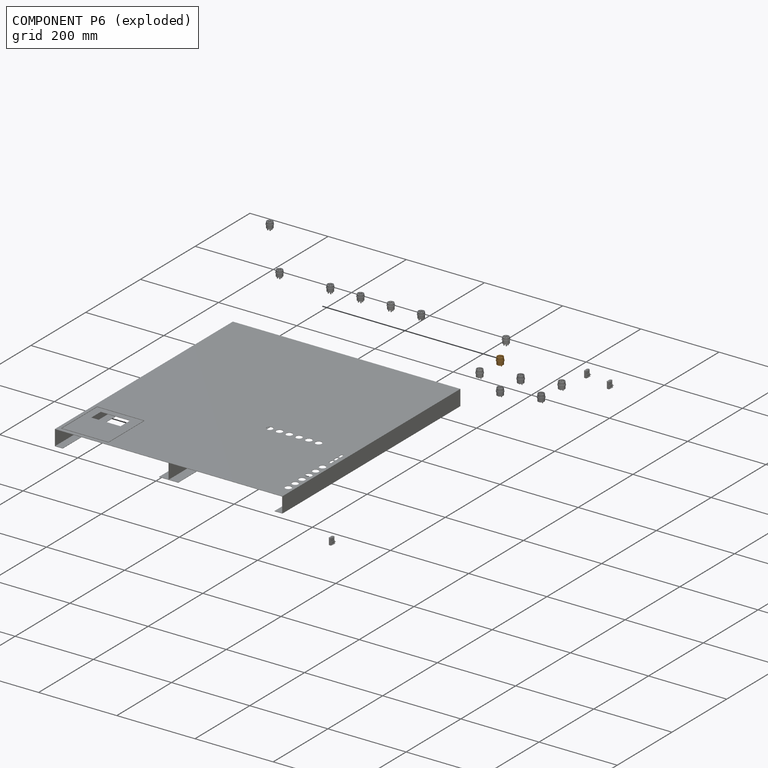
[diagram: component P6 — exploded]
COMPONENT P6 — geometry summary (no construction recipe available for this part):
  bounding box: 23.0 x 18.0 x 18.0 mm
  B-rep topology: 1 solid, 31 faces, 118 edges
  volume: 3036 mm^3 (41% of its bounding box)
  symmetry: mirror-symmetric across its x mid-plane
Held by: no mates (free).
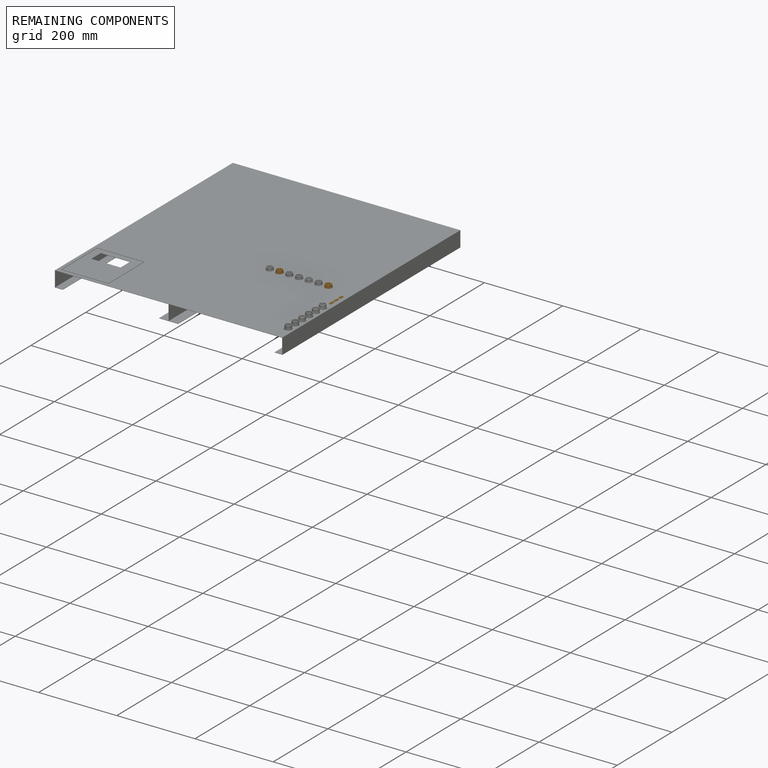
[diagram: remaining components — assembled]
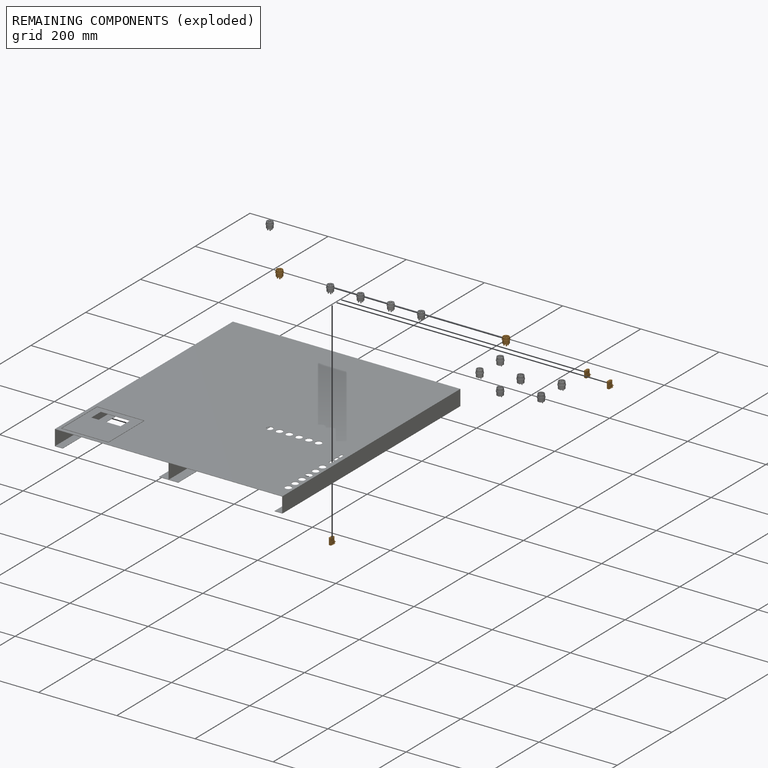
[diagram: remaining components — exploded]
REMAINING COMPONENTS (grouped) — the 5 components below fall outside the per-component tour by the significance rule stated above; both spotlight views highlight the whole group.
  P11: bounding box 20.0 x 18.0 x 18.0 mm, volume 2028 mm^3. Held by: no mates (free).
  P14: bounding box 20.0 x 18.0 x 18.0 mm, volume 2028 mm^3. Held by: no mates (free).
  P16: bounding box 16.6 x 14.5 x 10.3 mm, volume 854 mm^3. Held by: no mates (free).
  P12: bounding box 16.6 x 14.5 x 10.3 mm, volume 854 mm^3. Held by: no mates (free).
  P10: bounding box 16.6 x 14.5 x 10.3 mm, volume 854 mm^3. Held by: PLANAR mate "Planar 5" to P2; PARALLEL mate "Parallel 1" to P2; PLANAR mate "Planar 4" to P2; PLANAR mate "Planar 3" to P2.
PROVENANCE & LICENSES
Assembly (occurrences, transforms, mates, per-part STEP geometry): AutoMate dataset, Zenodo record 7776208, CC0.
Construction recipes: CADFS (HuggingFace VladPyatov/CADFS, CC-BY-4.0, layered over the ABC dataset), FeatureScript reconstruction programs keyed by ABC model id.
Join: ABC meta listings map ABC model id -> Onshape documentId; within a shared document, parts are matched by geometric signature (bounding-box dims + volume at 0.1% relative tolerance, exact B-rep face/solid counts).
Verification: 1 of this assembly's 17 components carries a recipe attachment, and every attachment is mesh-verified: the CADFS STEP and the AutoMate member STEP were compared as meshes in their shared local frame (symmetric sampled-point-to-mesh distance); worst across the 1 attachment: below the mesh-comparison resolution (tessellation chordal tolerance ~1.31 mm) on a 873 mm part.
Renders: orthographic iso camera (az 35 / el 25); the floor grid conveys scale (grid pitch printed in each image; no ruler). In the exploded view each component is displaced by its stored offset vector: the offsets alone carry the explosion direction (mate normal/axis signs are not orientation cues and do not encode it), and separation distances are assigned per mate-chain, not proportionally to assembly-order depth.
